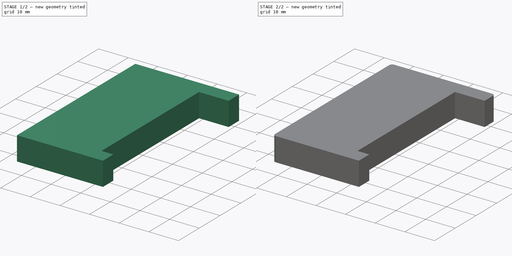
[diagram: build sequence overview — one tinted view per stage of 2, left to right]
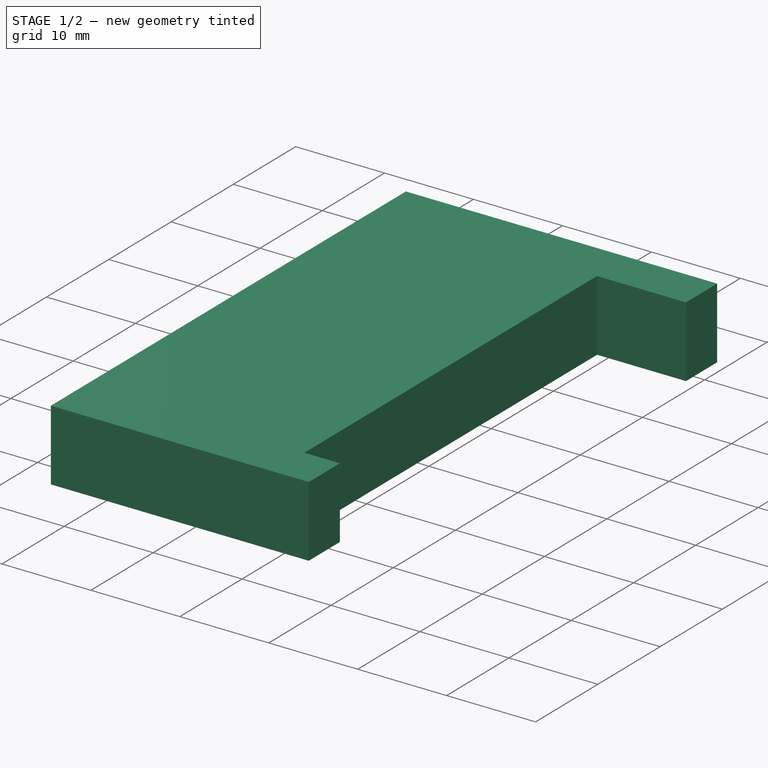
[diagram: stage 1 of 2 — iso view after this stage's code; geometry added in this stage tinted green]
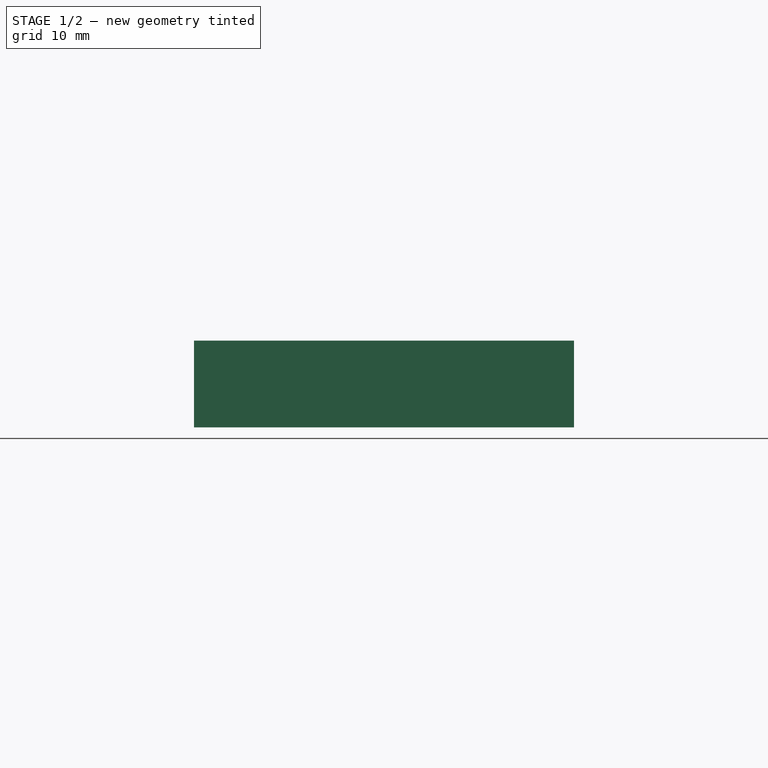
[diagram: stage 1 of 2 — front view after this stage's code; geometry added in this stage tinted green]
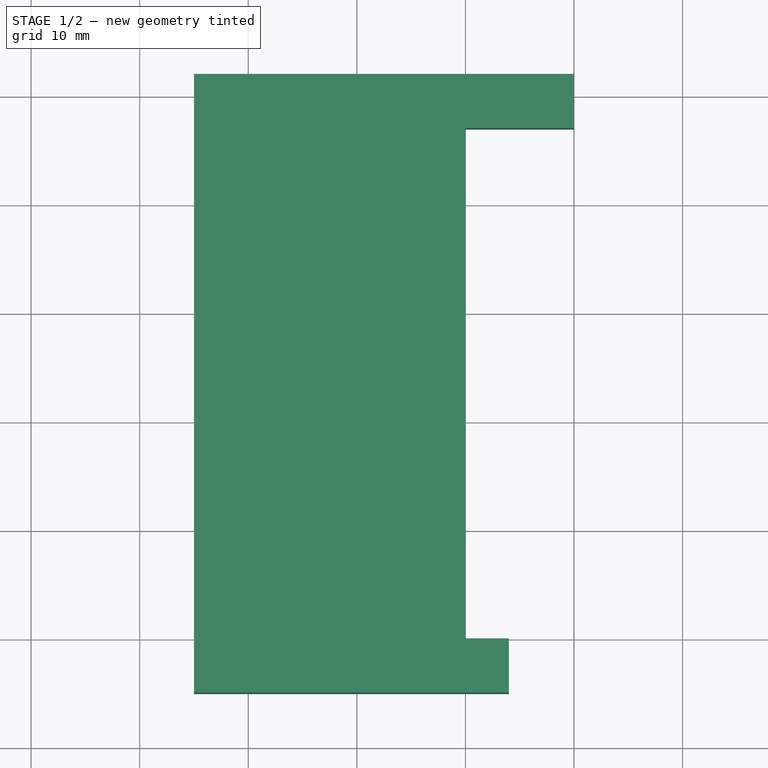
[diagram: stage 1 of 2 — top view after this stage's code; geometry added in this stage tinted green]
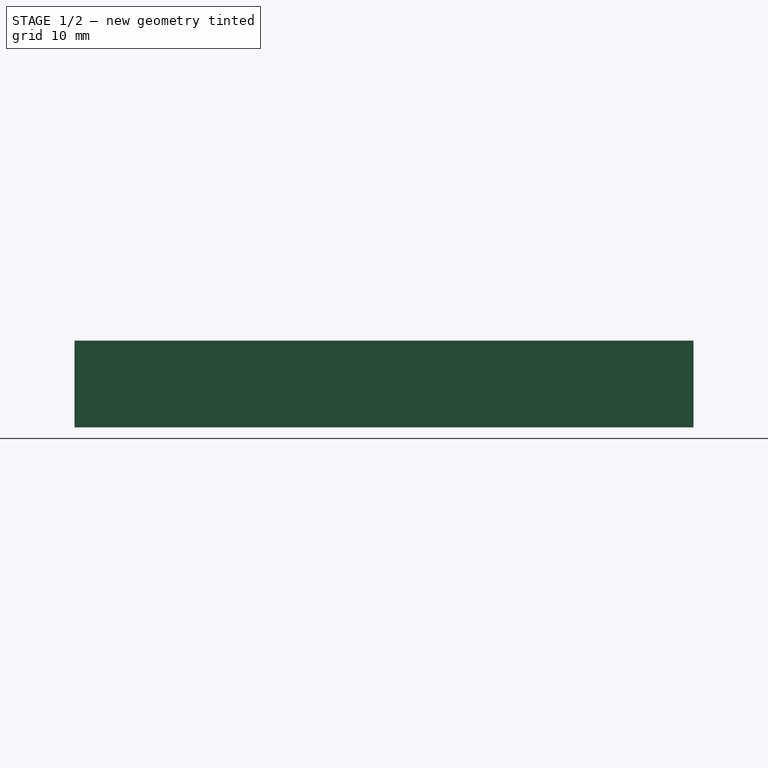
[diagram: stage 1 of 2 — right view after this stage's code; geometry added in this stage tinted green]
FCSTD DOCUMENT  (FreeCAD 0.20R29177 +426 (Git))
Label: pictFrameToTableSupportHinger
License: All rights reserved
LicenseURL: http://en.wikipedia.org/wiki/All_rights_reserved
objects: Sketcher::SketchObject×1, Spreadsheet::Sheet×1, PartDesign::Pad×1, PartDesign::Fillet×1, PartDesign::Body×1
note: 6 computed .brp shape members not serialized (recipe doc carries the construction recipe); baked Part::Feature solids carry a one-line shape summary decoded from their .brp

FEATURE [Sketcher::SketchObject] Sketch
  FullyConstrained = true
  MapMode = 5
  Support = -> [XY_Plane]
  expr: Constraints[11] = Spreadsheet.distToWall
  expr: Constraints[14] = Spreadsheet.supportThickness
  expr: Constraints[22] = Spreadsheet.bottomToFrame
  expr: Constraints[2] = Spreadsheet.totalGap
  expr: Constraints[5] = Spreadsheet.topHingerDist
  expr: Constraints[8] = Spreadsheet.supportThickness
  sketch-geometry (8):
    g0: LineSegment StartX=0 StartY=0 StartZ=0 EndX=0 EndY=47 EndZ=0
    g1: LineSegment StartX=0 StartY=47 StartZ=0 EndX=10 EndY=47 EndZ=0
    g2: LineSegment StartX=10 StartY=47 StartZ=0 EndX=10 EndY=52 EndZ=0
    g3: LineSegment StartX=10 StartY=52 StartZ=0 EndX=-25 EndY=52 EndZ=0
    g4: LineSegment StartX=-25 StartY=52 StartZ=0 EndX=-25 EndY=-5 EndZ=0
    g5: LineSegment StartX=0 StartY=0 StartZ=0 EndX=4 EndY=0 EndZ=0
    g6: LineSegment StartX=4 StartY=0 StartZ=0 EndX=4 EndY=-5 EndZ=0
    g7: LineSegment StartX=4 StartY=-5 StartZ=0 EndX=-25 EndY=-5 EndZ=0
  constraints (23):
    c: Coincident(g0,g-1)
    c: PointOnObject(g0,g-2)
    c: DistanceY(g0,g0) = 47
    c: Coincident(g1,g0)
    c: Horizontal(g1)
    c: DistanceX(g1,g1) = 10
    c: Coincident(g2,g1)
    c: Vertical(g2)
    c: DistanceY(g2,g2) = 5
    c: Coincident(g3,g2)
    c: Horizontal(g3)
    c: DistanceX(g3,g0) = 25
    c: Coincident(g4,g3)
    c: Vertical(g4)
    c: DistanceY(g4,g0) = 5
    c: Coincident(g5,g0)
    c: PointOnObject(g5,g-1)
    c: Coincident(g6,g5)
    c: Vertical(g6)
    c: Coincident(g7,g6)
    c: Coincident(g7,g4)
    c: Horizontal(g7)
    c: DistanceX(g5,g5) = 4
FEATURE [Spreadsheet::Sheet] Spreadsheet
  cells = A2=tableHingerHeight; B2(tableHingerHeight)=33; A3=frameHeight; B3(frameHeight)=14; A4=topHingerDist; B4(topHingerDist)=10; A5=totalGap; B5(totalGap)==tableHingerHeight + frameHeight; A6=distToWall; B6(distToWall)=25; A8=pad; B8(pad)=8; C8=was 4, changed to 8; A9=bottomToFrame; B9(bottomToFrame)=4; A11=supportThickness; B11(supportThickness)=5
FEATURE [PartDesign::Pad] Pad
  Direction = (0,0,1)
  Length = 8
  Length2 = 10
  Profile = -> Sketch
  ReferenceAxis = -> Sketch [N_Axis]
  Type = 0
  expr: Length = Spreadsheet.pad
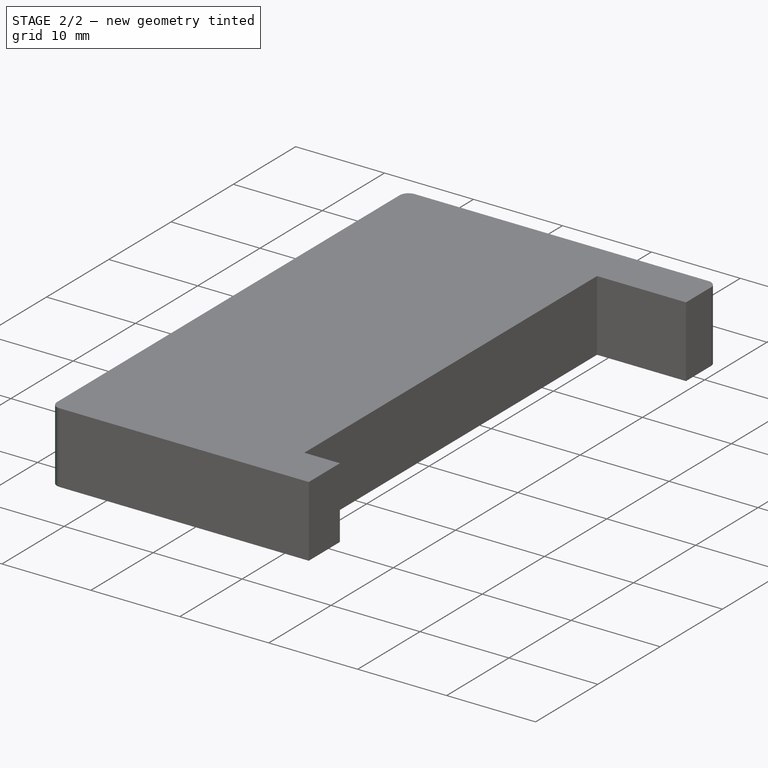
[diagram: stage 2 of 2 — iso view after this stage's code; geometry added in this stage tinted green]
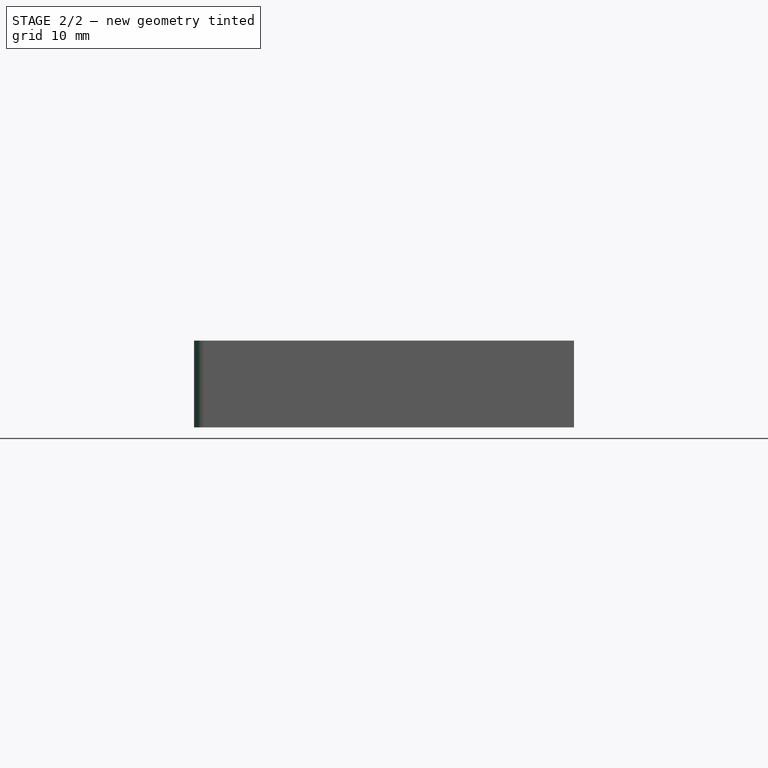
[diagram: stage 2 of 2 — front view after this stage's code; geometry added in this stage tinted green]
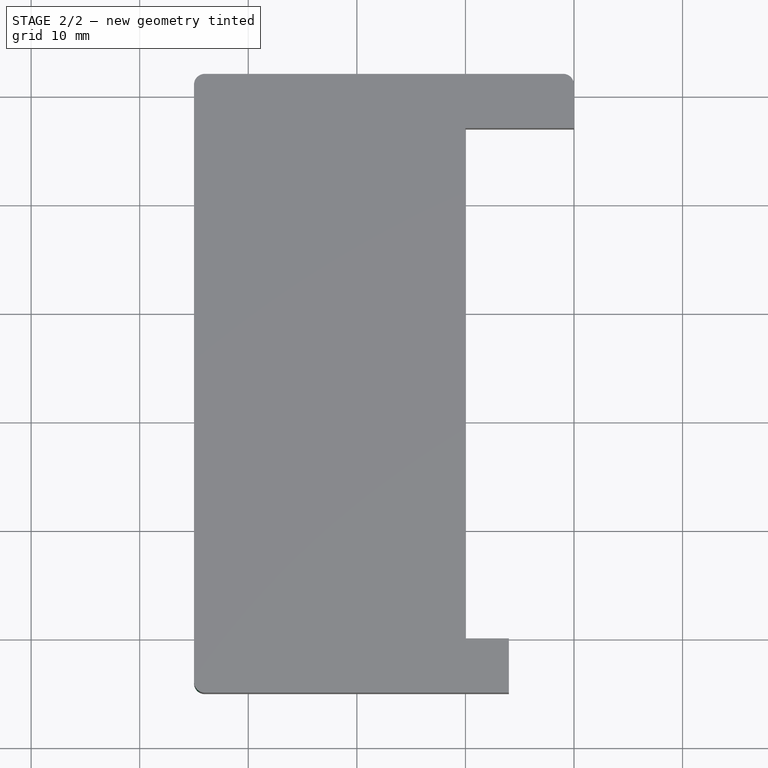
[diagram: stage 2 of 2 — top view after this stage's code; geometry added in this stage tinted green]
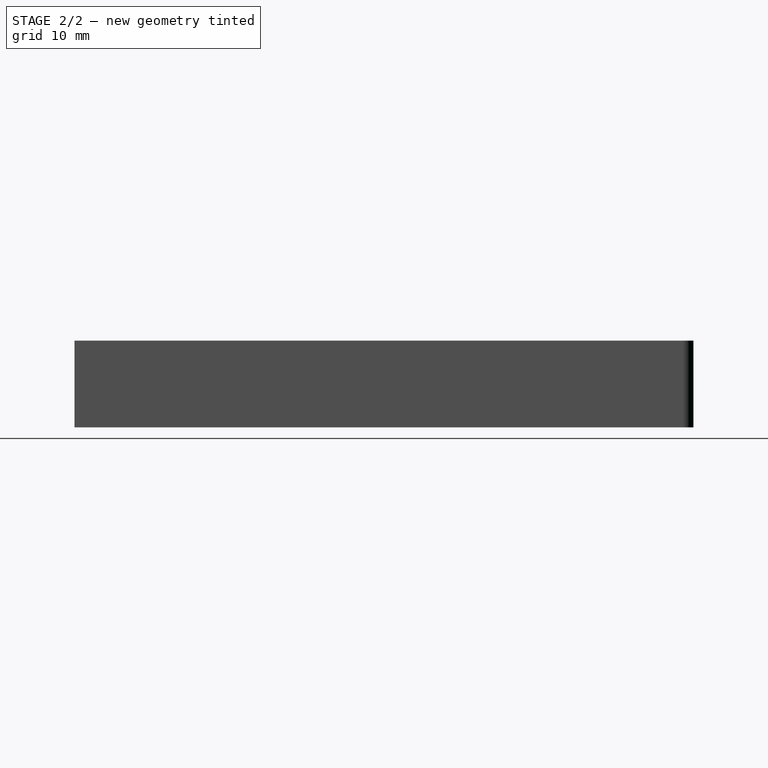
[diagram: stage 2 of 2 — right view after this stage's code; geometry added in this stage tinted green]
FEATURE [PartDesign::Fillet] Fillet
  Base = -> Pad [Edge11,Edge14,Edge8]
  BaseFeature = -> Pad
  Radius = 1
  SupportTransform = false
  UseAllEdges = false
FEATURE [PartDesign::Body] Body
  Group = -> [Sketch,Pad,Fillet]
  Origin = -> Origin
  Tip = -> Fillet
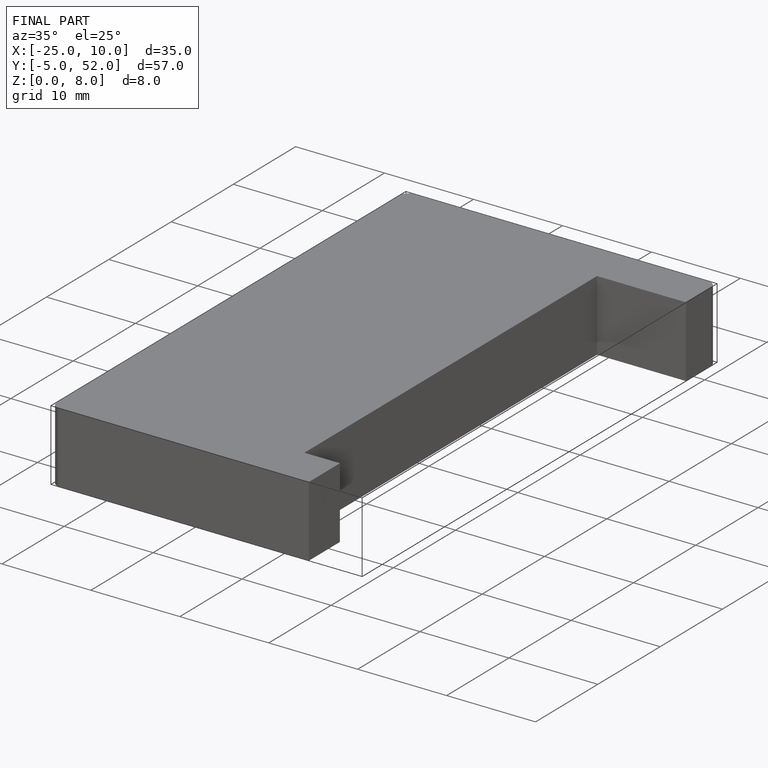
[diagram: finished part — iso view with bounding-box wireframe]
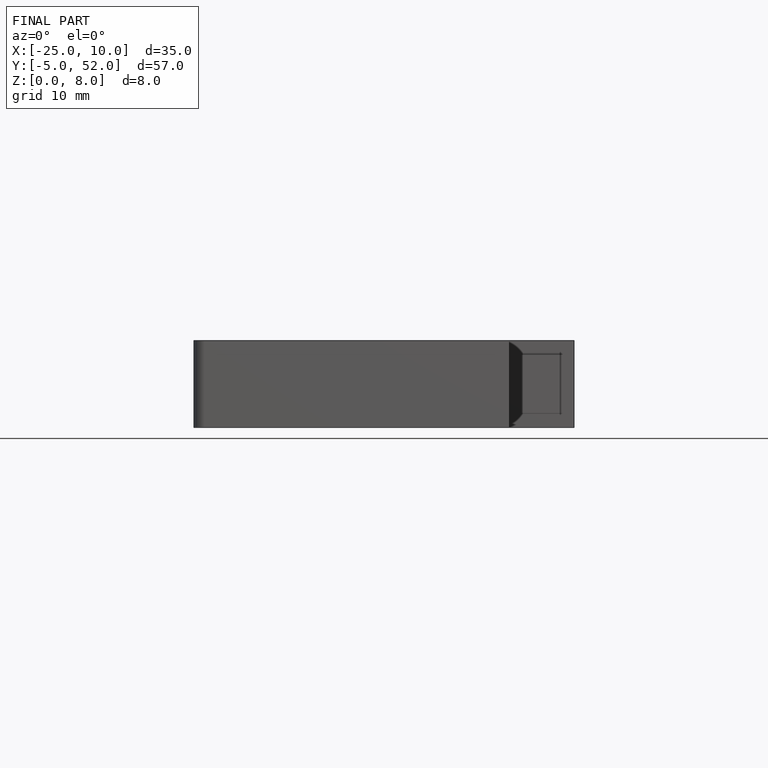
[diagram: finished part — front view with bounding-box wireframe]
